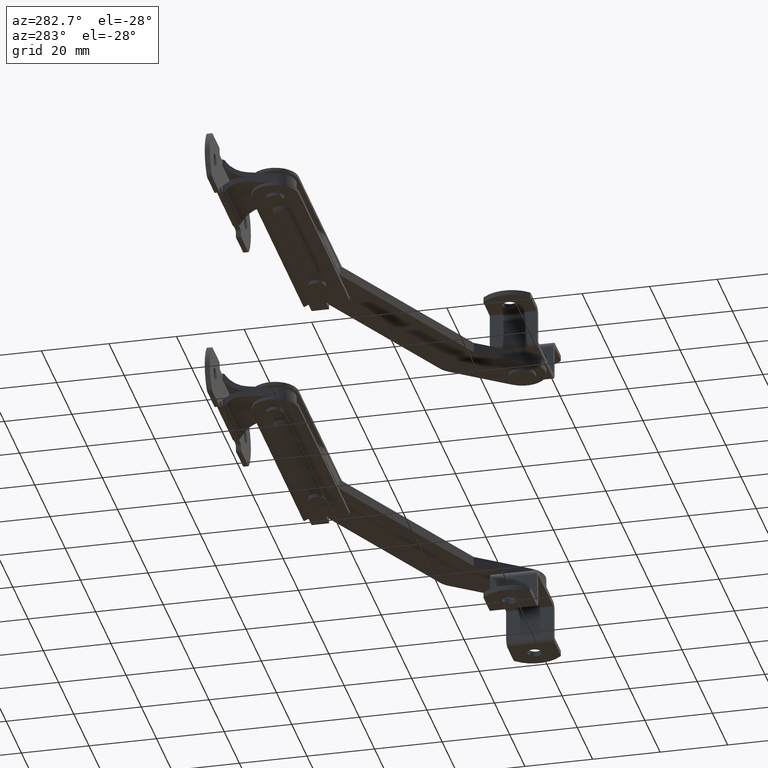
[diagram: clean part render]
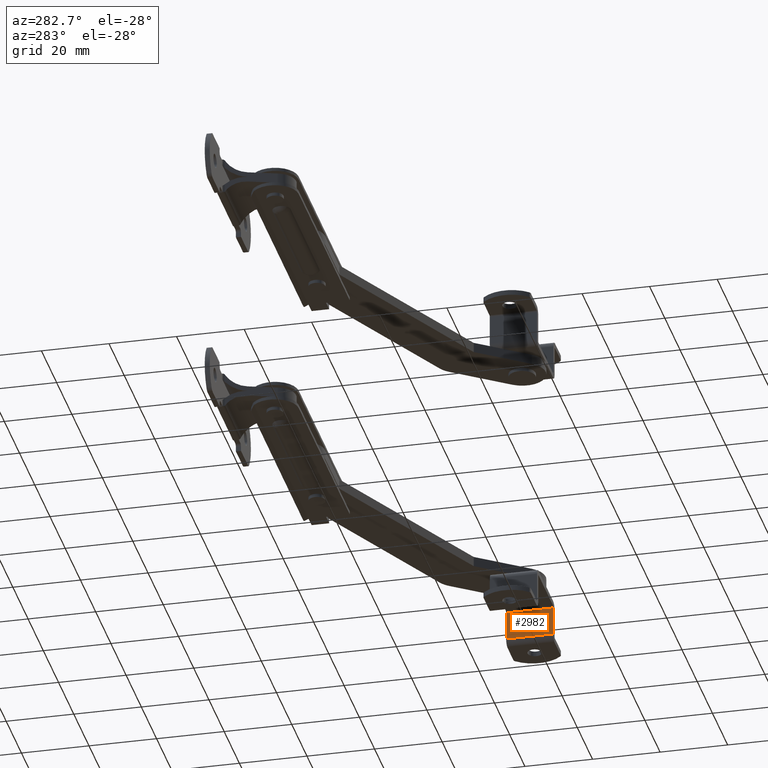
[diagram: same view with one face highlighted and labeled with its STEP entity id]
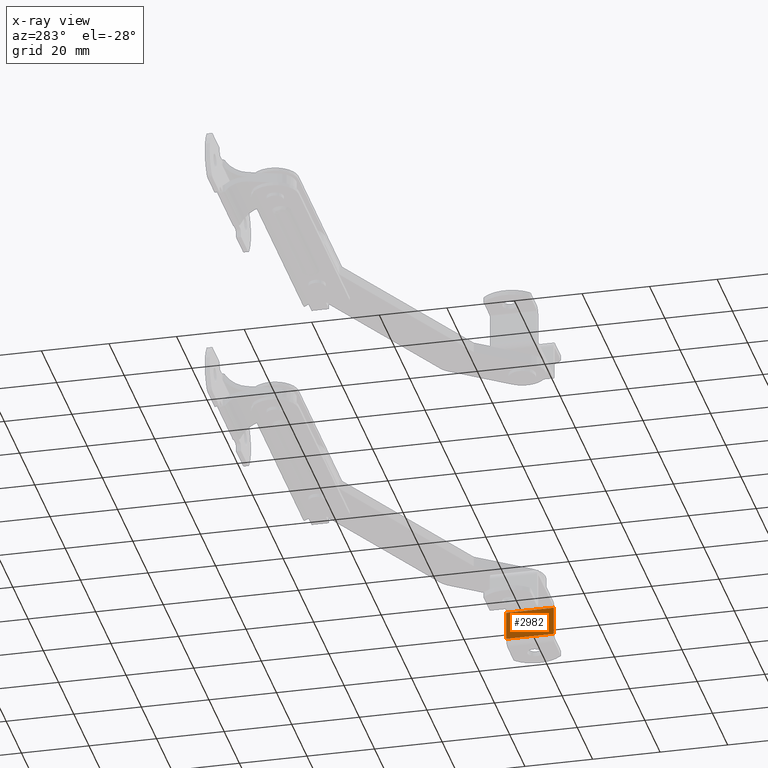
[diagram: x-ray of the same camera — body ghosted, the highlighted face saturated]
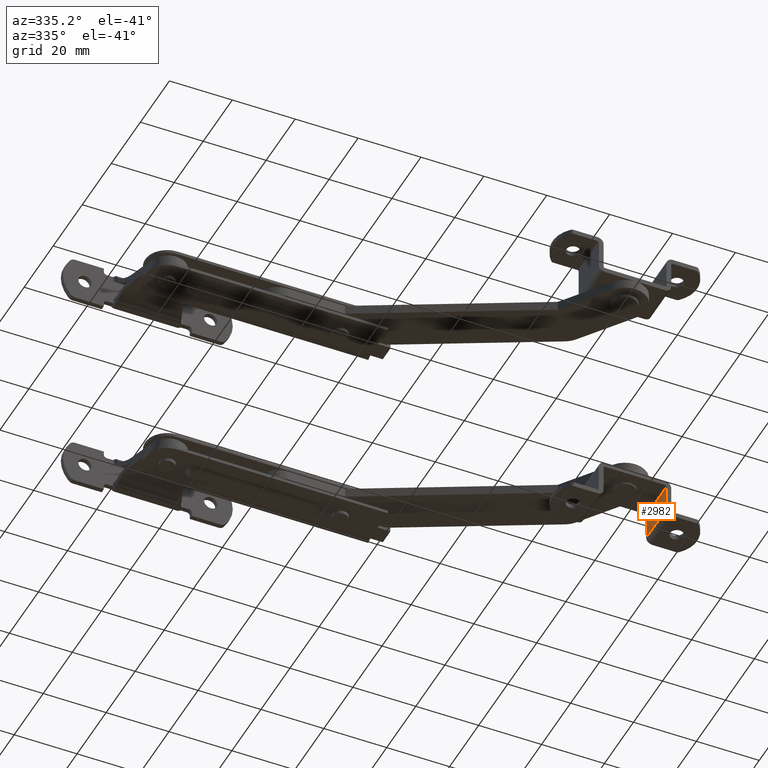
[diagram: same view with one face highlighted and labeled with its STEP entity id]
A machine part, auxiliary view. The second image highlights one B-rep face of the part: STEP entity #2982.
The next image is the same camera in x-ray: the body ghosted, the highlighted face saturated — about 0% of this face is hidden behind the body in this view.
A second angle (auxiliary view) of the same face is appended — the face is thin or edge-on in the first view.
In plain terms, the highlighted planar face has unit normal (-1, -0, -0).
Its self-contained STEP definition (entity closure, byte-faithful):
#292=LINE('',#5335,#503);
#304=LINE('',#5379,#515);
#309=LINE('',#5392,#520);
#310=LINE('',#5395,#521);
#503=VECTOR('',#4086,8.5);
#515=VECTOR('',#4126,8.5);
#520=VECTOR('',#4143,14.);
#521=VECTOR('',#4148,14.);
#838=FACE_OUTER_BOUND('',#1044,.T.);
#1044=EDGE_LOOP('',(#2660,#2661,#2662,#2663));
#1464=VERTEX_POINT('',#5332);
#1465=VERTEX_POINT('',#5334);
#1482=VERTEX_POINT('',#5376);
#1483=VERTEX_POINT('',#5378);
#1855=EDGE_CURVE('',#1464,#1465,#292,.T.);
#1877=EDGE_CURVE('',#1483,#1482,#304,.T.);
#1885=EDGE_CURVE('',#1482,#1465,#309,.T.);
#1886=EDGE_CURVE('',#1483,#1464,#310,.T.);
#2660=ORIENTED_EDGE('',*,*,#1885,.T.);
#2661=ORIENTED_EDGE('',*,*,#1855,.F.);
#2662=ORIENTED_EDGE('',*,*,#1886,.F.);
#2663=ORIENTED_EDGE('',*,*,#1877,.T.);
#2820=PLANE('',#3310);
#2982=ADVANCED_FACE('',(#838),#2820,.T.);
#3310=AXIS2_PLACEMENT_3D('',#5397,#4150,#4151);
#4086=DIRECTION('',(1.77635683940025E-16,7.61575252350444E-48,1.));
#4126=DIRECTION('',(1.77635683940025E-16,0.,1.));
#4143=DIRECTION('',(-4.28728752837506E-32,1.,0.));
#4148=DIRECTION('',(0.,1.,0.));
#4150=DIRECTION('center_axis',(-1.,0.,1.77635683940025E-16));
#4151=DIRECTION('ref_axis',(-1.77635683940025E-16,0.,-1.));
#5332=CARTESIAN_POINT('',(10.,7.,2.));
#5334=CARTESIAN_POINT('',(10.,7.,10.5));
#5335=CARTESIAN_POINT('',(10.,7.,6.25));
#5376=CARTESIAN_POINT('',(10.,-7.,10.5));
#5378=CARTESIAN_POINT('',(10.,-7.,2.));
#5379=CARTESIAN_POINT('',(10.,-7.,6.25));
#5392=CARTESIAN_POINT('',(10.,4.28728752837506E-31,10.5));
#5395=CARTESIAN_POINT('',(10.,-1.75,2.));
#5397=CARTESIAN_POINT('Origin',(10.,0.,12.5));